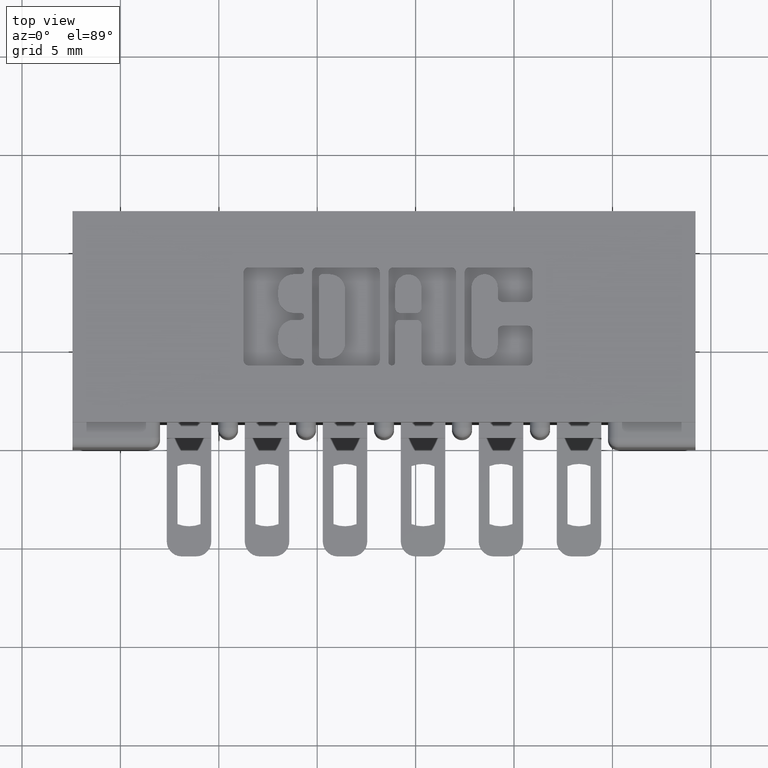
[diagram: clean part render]
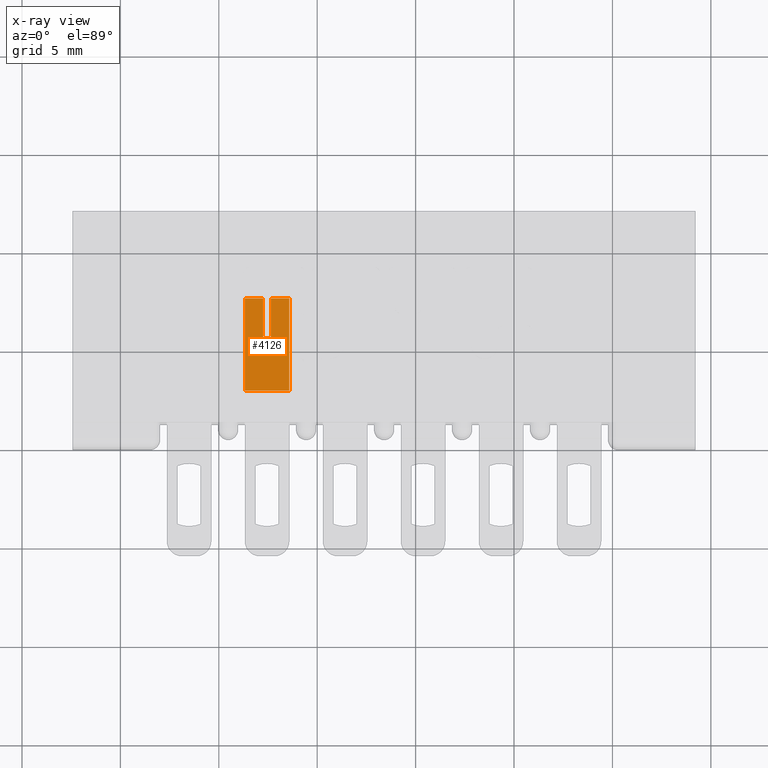
[diagram: x-ray — body ghosted, one internal face saturated and labeled with its STEP entity id]
A machine part, top view, then the same camera in x-ray: the body is ghosted and one INTERNAL B-rep face — a face not visible from any outside direction — is saturated and labeled: STEP entity #4126.
In plain terms, the highlighted planar face has unit normal (-0, -0, 1).
Its self-contained STEP definition (entity closure, byte-faithful):
#31 = CARTESIAN_POINT ( 'NONE',  ( 0.1660000000000000100, 0.1841669570275357700, -0.05250000000000060200 ) ) ;
#181 = CARTESIAN_POINT ( 'NONE',  ( 0.1659999999999999300, 0.1841669570275412900, -0.08899999999999896900 ) ) ;
#221 = VERTEX_POINT ( 'NONE', #8541 ) ;
#224 = CARTESIAN_POINT ( 'NONE',  ( 0.1660000000000000100, 0.1841669570275356900, -0.05250000000000060200 ) ) ;
#270 = CARTESIAN_POINT ( 'NONE',  ( 0.1659999999999999300, 0.1841669570275412900, -0.08899999999999896900 ) ) ;
#328 = DIRECTION ( 'NONE',  ( -8.906229577750046100E-014, 1.031235533802508500E-014, 1.000000000000000000 ) ) ;
#358 = ORIENTED_EDGE ( 'NONE', *, *, #7204, .F. ) ;
#508 = DIRECTION ( 'NONE',  ( -1.522115766761089600E-013, 1.000000000000000000, 1.031235533802508500E-014 ) ) ;
#521 = EDGE_CURVE ( 'NONE', #4800, #9710, #7715, .T. ) ;
#553 = LINE ( 'NONE', #270, #801 ) ;
#656 = DIRECTION ( 'NONE',  ( 8.906229577750046100E-014, -1.031235533802508500E-014, -1.000000000000000000 ) ) ;
#801 = VECTOR ( 'NONE', #9551, 39.37007874015748100 ) ;
#1039 = CARTESIAN_POINT ( 'NONE',  ( 0.1660000000000000100, 0.1841669570275413800, -0.08899999999999896900 ) ) ;
#1056 = FACE_OUTER_BOUND ( 'NONE', #4544, .T. ) ;
#1144 = LINE ( 'NONE', #1871, #3439 ) ;
#1241 = CARTESIAN_POINT ( 'NONE',  ( 0.1660000000000000100, 0.1841669570275328300, -0.03650000000000055300 ) ) ;
#1652 = ORIENTED_EDGE ( 'NONE', *, *, #3269, .F. ) ;
#1847 = DIRECTION ( 'NONE',  ( 8.906229577750046100E-014, -1.031235533802508500E-014, -1.000000000000000000 ) ) ;
#1871 = CARTESIAN_POINT ( 'NONE',  ( 0.1660000000000000100, 0.1841669570275413800, -0.08899999999999896900 ) ) ;
#2035 = CARTESIAN_POINT ( 'NONE',  ( 0.1660000000000000100, 0.1841669570275329100, 0.0000000000000000000 ) ) ;
#2050 = CARTESIAN_POINT ( 'NONE',  ( 0.1659999999999999300, 0.1841669570275328300, 0.0000000000000000000 ) ) ;
#2475 = CARTESIAN_POINT ( 'NONE',  ( 0.1660000000000000100, 0.1049999999999401100, -0.03650000000000055300 ) ) ;
#3048 = VERTEX_POINT ( 'NONE', #2475 ) ;
#3069 = CARTESIAN_POINT ( 'NONE',  ( 0.1660000000000000100, 0.1049999999999429900, -0.05250000000000060200 ) ) ;
#3263 = EDGE_CURVE ( 'NONE', #5191, #8419, #4839, .T. ) ;
#3269 = EDGE_CURVE ( 'NONE', #221, #8419, #9715, .T. ) ;
#3378 = DIRECTION ( 'NONE',  ( 1.000000000000000000, -1.522115766761071400E-013, 8.906229577750202600E-014 ) ) ;
#3439 = VECTOR ( 'NONE', #3441, 39.37007874015748100 ) ;
#3441 = DIRECTION ( 'NONE',  ( -1.522115766761089600E-013, 1.000000000000000000, 1.031235533802508500E-014 ) ) ;
#3514 = ORIENTED_EDGE ( 'NONE', *, *, #7298, .F. ) ;
#3706 = LINE ( 'NONE', #3829, #4171 ) ;
#3829 = CARTESIAN_POINT ( 'NONE',  ( 0.1660000000000000100, 0.1049999999999458400, -0.08899999999999896900 ) ) ;
#4126 = ADVANCED_FACE ( 'NONE', ( #1056 ), #9564, .T. ) ;
#4171 = VECTOR ( 'NONE', #656, 39.37007874015748100 ) ;
#4243 = ORIENTED_EDGE ( 'NONE', *, *, #8298, .T. ) ;
#4544 = EDGE_LOOP ( 'NONE', ( #358, #8275, #1652, #3514, #4243, #8078, #7194, #8446 ) ) ;
#4800 = VERTEX_POINT ( 'NONE', #3069 ) ;
#4824 = EDGE_CURVE ( 'NONE', #3048, #4800, #3706, .T. ) ;
#4839 = LINE ( 'NONE', #6589, #6058 ) ;
#5168 = VECTOR ( 'NONE', #10104, 39.37007874015748100 ) ;
#5191 = VERTEX_POINT ( 'NONE', #1241 ) ;
#5329 = AXIS2_PLACEMENT_3D ( 'NONE', #1039, #3378, #1847 ) ;
#5518 = VECTOR ( 'NONE', #8433, 39.37007874015748100 ) ;
#5569 = VECTOR ( 'NONE', #508, 39.37007874015748100 ) ;
#5616 = VECTOR ( 'NONE', #6289, 39.37007874015748100 ) ;
#6058 = VECTOR ( 'NONE', #328, 39.37007874015748100 ) ;
#6289 = DIRECTION ( 'NONE',  ( -1.522115766761089600E-013, 1.000000000000000000, 1.031235533802508500E-014 ) ) ;
#6589 = CARTESIAN_POINT ( 'NONE',  ( 0.1659999999999999300, 0.1841669570275412900, -0.08899999999999896900 ) ) ;
#6912 = EDGE_CURVE ( 'NONE', #8125, #9710, #553, .T. ) ;
#7073 = CARTESIAN_POINT ( 'NONE',  ( 0.1660000000000000100, -2.617451858929572300E-014, -0.08899999999999896900 ) ) ;
#7194 = ORIENTED_EDGE ( 'NONE', *, *, #521, .F. ) ;
#7204 = EDGE_CURVE ( 'NONE', #5191, #3048, #7837, .T. ) ;
#7298 = EDGE_CURVE ( 'NONE', #9816, #221, #8332, .T. ) ;
#7373 = CARTESIAN_POINT ( 'NONE',  ( 0.1660000000000000100, -2.617451858929572300E-014, -0.08899999999999896900 ) ) ;
#7715 = LINE ( 'NONE', #31, #5616 ) ;
#7837 = LINE ( 'NONE', #8461, #5518 ) ;
#8078 = ORIENTED_EDGE ( 'NONE', *, *, #6912, .T. ) ;
#8125 = VERTEX_POINT ( 'NONE', #181 ) ;
#8275 = ORIENTED_EDGE ( 'NONE', *, *, #3263, .T. ) ;
#8298 = EDGE_CURVE ( 'NONE', #9816, #8125, #1144, .T. ) ;
#8332 = LINE ( 'NONE', #7073, #5168 ) ;
#8419 = VERTEX_POINT ( 'NONE', #2050 ) ;
#8433 = DIRECTION ( 'NONE',  ( 1.522115766761089600E-013, -1.000000000000000000, -1.031235533802508500E-014 ) ) ;
#8446 = ORIENTED_EDGE ( 'NONE', *, *, #4824, .F. ) ;
#8461 = CARTESIAN_POINT ( 'NONE',  ( 0.1660000000000000100, 0.1841669570275329100, -0.03650000000000055300 ) ) ;
#8541 = CARTESIAN_POINT ( 'NONE',  ( 0.1660000000000000100, -3.119428927765380300E-014, 0.0000000000000000000 ) ) ;
#9551 = DIRECTION ( 'NONE',  ( -8.906229577750046100E-014, 1.031235533802508500E-014, 1.000000000000000000 ) ) ;
#9564 = PLANE ( 'NONE',  #5329 ) ;
#9710 = VERTEX_POINT ( 'NONE', #224 ) ;
#9715 = LINE ( 'NONE', #2035, #5569 ) ;
#9816 = VERTEX_POINT ( 'NONE', #7373 ) ;
#10104 = DIRECTION ( 'NONE',  ( -8.906229577750046100E-014, 1.031235533802508500E-014, 1.000000000000000000 ) ) ;